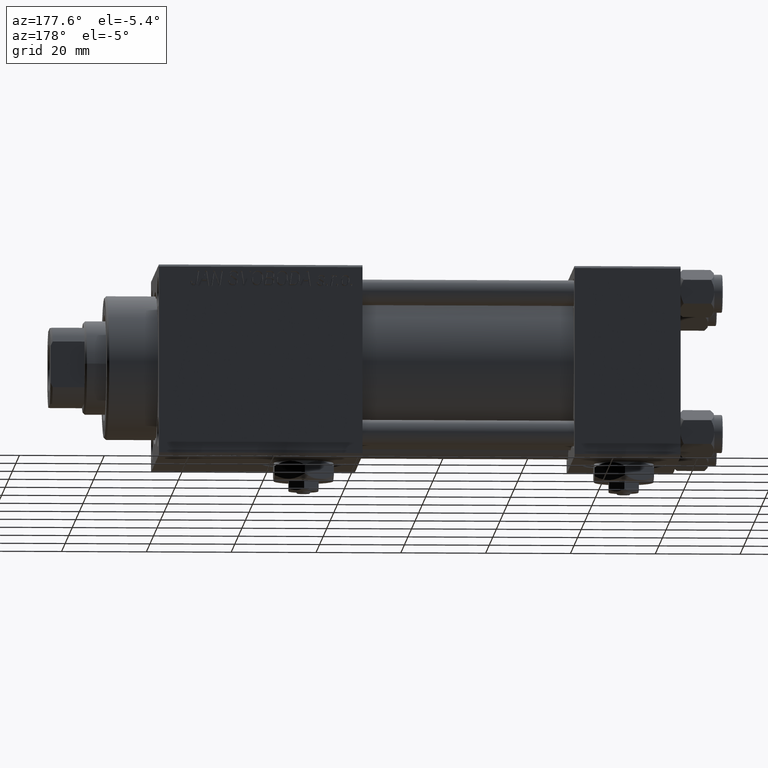
[diagram: clean part render]
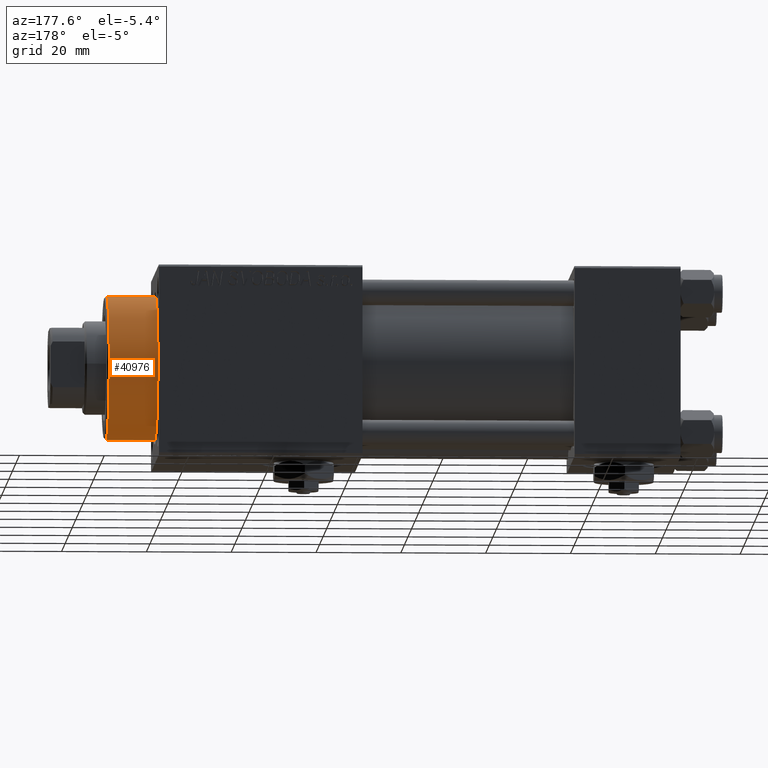
[diagram: same view with one face highlighted and labeled with its STEP entity id]
A machine part, auxiliary view. The second image highlights one B-rep face of the part: STEP entity #40976.
In plain terms, the highlighted cylindrical surface (partial cylindrical patch) has radius 17 mm, axis along (-1, -0, -0).
Its self-contained STEP definition (entity closure, byte-faithful):
#367 = DIRECTION ( 'NONE',  ( 0.000000000000000000, 0.000000000000000000, -1.000000000000000000 ) ) ;
#2872 = EDGE_CURVE ( 'NONE', #48579, #46641, #9751, .T. ) ;
#3013 = EDGE_CURVE ( 'NONE', #33176, #48579, #14935, .T. ) ;
#4422 = ORIENTED_EDGE ( 'NONE', *, *, #2872, .T. ) ;
#6886 = DIRECTION ( 'NONE',  ( -1.000000000000000000, 0.000000000000000000, 0.000000000000000000 ) ) ;
#7401 = CARTESIAN_POINT ( 'NONE',  ( 0.000000000000000000, 0.000000000000000000, 40.70000000000000284 ) ) ;
#8888 = CARTESIAN_POINT ( 'NONE',  ( 0.000000000000000000, 0.000000000000000000, 28.69999999999999929 ) ) ;
#9751 = CIRCLE ( 'NONE', #52029, 17.00000000000000000 ) ;
#11477 = VECTOR ( 'NONE', #31788, 1000.000000000000000 ) ;
#11744 = DIRECTION ( 'NONE',  ( 1.000000000000000000, 0.000000000000000000, 0.000000000000000000 ) ) ;
#14935 = LINE ( 'NONE', #42480, #11477 ) ;
#15719 = CARTESIAN_POINT ( 'NONE',  ( 0.000000000000000000, 0.000000000000000000, 40.19999999999999574 ) ) ;
#16587 = CARTESIAN_POINT ( 'NONE',  ( 17.00000000000000000, 2.081899558550500280E-15, 40.19999999999999574 ) ) ;
#18461 = VECTOR ( 'NONE', #48772, 1000.000000000000000 ) ;
#19578 = CYLINDRICAL_SURFACE ( 'NONE', #20564, 17.00000000000000000 ) ;
#20397 = CARTESIAN_POINT ( 'NONE',  ( 17.00000000000000000, 2.081899558550500280E-15, 28.69999999999999929 ) ) ;
#20564 = AXIS2_PLACEMENT_3D ( 'NONE', #7401, #51095, #6886 ) ;
#23008 = ORIENTED_EDGE ( 'NONE', *, *, #3013, .T. ) ;
#23765 = ORIENTED_EDGE ( 'NONE', *, *, #26222, .F. ) ;
#26222 = EDGE_CURVE ( 'NONE', #44777, #46641, #33407, .T. ) ;
#28746 = DIRECTION ( 'NONE',  ( 0.000000000000000000, 0.000000000000000000, 1.000000000000000000 ) ) ;
#31195 = CARTESIAN_POINT ( 'NONE',  ( -17.00000000000000000, 0.000000000000000000, 40.19999999999999574 ) ) ;
#31788 = DIRECTION ( 'NONE',  ( -0.000000000000000000, -0.000000000000000000, -1.000000000000000000 ) ) ;
#32274 = CIRCLE ( 'NONE', #44995, 17.00000000000000000 ) ;
#33176 = VERTEX_POINT ( 'NONE', #16587 ) ;
#33407 = LINE ( 'NONE', #36856, #18461 ) ;
#33602 = EDGE_LOOP ( 'NONE', ( #40516, #23008, #4422, #23765 ) ) ;
#36856 = CARTESIAN_POINT ( 'NONE',  ( -17.00000000000000000, 0.000000000000000000, 40.70000000000000284 ) ) ;
#37615 = EDGE_CURVE ( 'NONE', #44777, #33176, #32274, .T. ) ;
#40516 = ORIENTED_EDGE ( 'NONE', *, *, #37615, .T. ) ;
#40976 = ADVANCED_FACE ( 'NONE', ( #43661 ), #19578, .T. ) ;
#42480 = CARTESIAN_POINT ( 'NONE',  ( 17.00000000000000000, 2.081899558550500280E-15, 40.70000000000000284 ) ) ;
#43661 = FACE_OUTER_BOUND ( 'NONE', #33602, .T. ) ;
#44777 = VERTEX_POINT ( 'NONE', #31195 ) ;
#44906 = DIRECTION ( 'NONE',  ( 1.000000000000000000, 0.000000000000000000, 0.000000000000000000 ) ) ;
#44995 = AXIS2_PLACEMENT_3D ( 'NONE', #15719, #367, #11744 ) ;
#45586 = CARTESIAN_POINT ( 'NONE',  ( -17.00000000000000000, 0.000000000000000000, 28.69999999999999929 ) ) ;
#46641 = VERTEX_POINT ( 'NONE', #45586 ) ;
#48579 = VERTEX_POINT ( 'NONE', #20397 ) ;
#48772 = DIRECTION ( 'NONE',  ( -0.000000000000000000, -0.000000000000000000, -1.000000000000000000 ) ) ;
#51095 = DIRECTION ( 'NONE',  ( -0.000000000000000000, -0.000000000000000000, -1.000000000000000000 ) ) ;
#52029 = AXIS2_PLACEMENT_3D ( 'NONE', #8888, #28746, #44906 ) ;